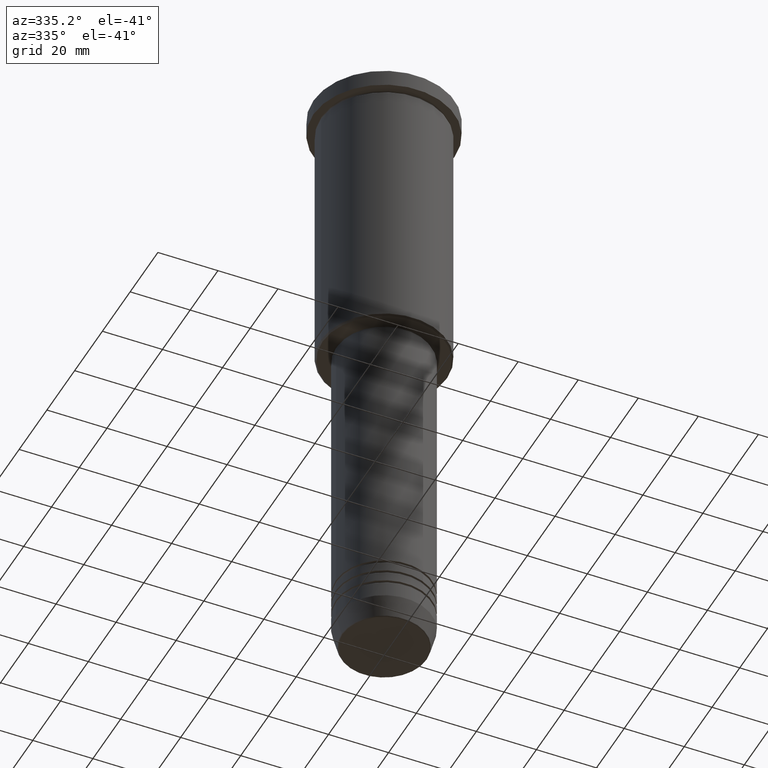
[diagram: clean part render]
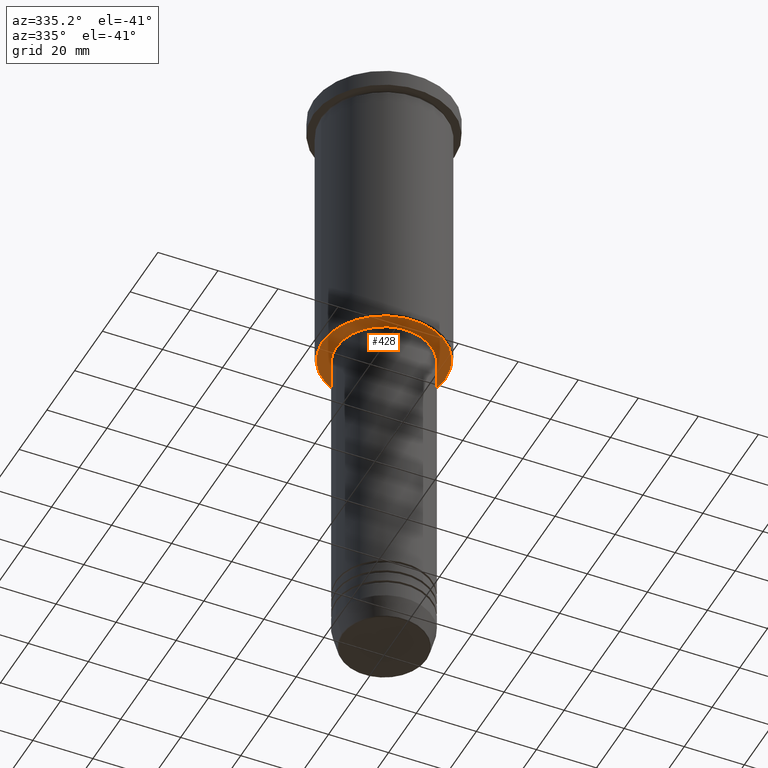
[diagram: same view with one face highlighted and labeled with its STEP entity id]
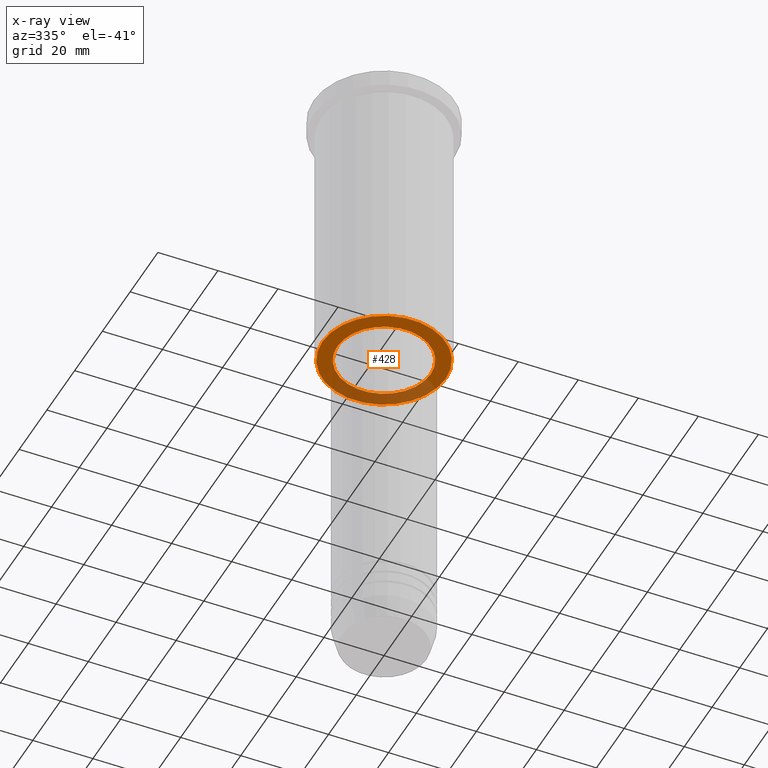
[diagram: x-ray of the same camera — body ghosted, the highlighted face saturated]
A machine part, auxiliary view. The second image highlights one B-rep face of the part: STEP entity #428.
The next image is the same camera in x-ray: the body ghosted, the highlighted face saturated — about 30% of this face is hidden behind the body in this view.
In plain terms, the highlighted planar face has unit normal (0, 0, -1).
Its self-contained STEP definition (entity closure, byte-faithful):
#9 = CIRCLE ( 'NONE', #195, 20.49999999999996447 ) ;
#20 = CARTESIAN_POINT ( 'NONE',  ( 20.49999999999996447, 0.000000000000000000, -96.00000000000002842 ) ) ;
#25 = EDGE_LOOP ( 'NONE', ( #701, #381 ) ) ;
#100 = ORIENTED_EDGE ( 'NONE', *, *, #421, .T. ) ;
#137 = DIRECTION ( 'NONE',  ( 1.000000000000000000, 0.000000000000000000, 0.000000000000000000 ) ) ;
#195 = AXIS2_PLACEMENT_3D ( 'NONE', #1072, #688, #967 ) ;
#245 = CARTESIAN_POINT ( 'NONE',  ( 0.000000000000000000, 21.00000000000000000, -96.00000000000002842 ) ) ;
#254 = CARTESIAN_POINT ( 'NONE',  ( 0.000000000000000000, 0.000000000000000000, -96.00000000000002842 ) ) ;
#259 = CIRCLE ( 'NONE', #921, 20.49999999999996447 ) ;
#329 = DIRECTION ( 'NONE',  ( -0.000000000000000000, -0.000000000000000000, 1.000000000000000000 ) ) ;
#337 = CARTESIAN_POINT ( 'NONE',  ( 0.000000000000000000, 0.000000000000000000, -96.00000000000002842 ) ) ;
#363 = DIRECTION ( 'NONE',  ( -1.000000000000000000, 0.000000000000000000, 0.000000000000000000 ) ) ;
#381 = ORIENTED_EDGE ( 'NONE', *, *, #888, .T. ) ;
#395 = VERTEX_POINT ( 'NONE', #427 ) ;
#410 = CIRCLE ( 'NONE', #1018, 15.50000000000000000 ) ;
#414 = AXIS2_PLACEMENT_3D ( 'NONE', #337, #329, #137 ) ;
#421 = EDGE_CURVE ( 'NONE', #455, #395, #900, .T. ) ;
#422 = FACE_BOUND ( 'NONE', #896, .T. ) ;
#427 = CARTESIAN_POINT ( 'NONE',  ( -15.50000000000000000, 1.898202538678397557E-15, -96.00000000000002842 ) ) ;
#428 = ADVANCED_FACE ( 'NONE', ( #783, #422 ), #1152, .T. ) ;
#436 = EDGE_CURVE ( 'NONE', #549, #951, #9, .T. ) ;
#446 = EDGE_CURVE ( 'NONE', #395, #455, #410, .T. ) ;
#455 = VERTEX_POINT ( 'NONE', #527 ) ;
#525 = ORIENTED_EDGE ( 'NONE', *, *, #446, .T. ) ;
#527 = CARTESIAN_POINT ( 'NONE',  ( 15.50000000000000000, 0.000000000000000000, -96.00000000000002842 ) ) ;
#549 = VERTEX_POINT ( 'NONE', #20 ) ;
#603 = DIRECTION ( 'NONE',  ( 0.000000000000000000, 0.000000000000000000, -1.000000000000000000 ) ) ;
#688 = DIRECTION ( 'NONE',  ( 0.000000000000000000, 0.000000000000000000, -1.000000000000000000 ) ) ;
#697 = DIRECTION ( 'NONE',  ( -1.000000000000000000, 0.000000000000000000, -0.000000000000000000 ) ) ;
#701 = ORIENTED_EDGE ( 'NONE', *, *, #436, .T. ) ;
#783 = FACE_OUTER_BOUND ( 'NONE', #25, .T. ) ;
#810 = CARTESIAN_POINT ( 'NONE',  ( 0.000000000000000000, 0.000000000000000000, -96.00000000000002842 ) ) ;
#822 = AXIS2_PLACEMENT_3D ( 'NONE', #245, #603, #697 ) ;
#888 = EDGE_CURVE ( 'NONE', #951, #549, #259, .T. ) ;
#896 = EDGE_LOOP ( 'NONE', ( #100, #525 ) ) ;
#900 = CIRCLE ( 'NONE', #414, 15.50000000000000000 ) ;
#921 = AXIS2_PLACEMENT_3D ( 'NONE', #810, #1180, #363 ) ;
#951 = VERTEX_POINT ( 'NONE', #1031 ) ;
#967 = DIRECTION ( 'NONE',  ( -1.000000000000000000, 0.000000000000000000, 0.000000000000000000 ) ) ;
#984 = DIRECTION ( 'NONE',  ( -0.000000000000000000, -0.000000000000000000, 1.000000000000000000 ) ) ;
#1018 = AXIS2_PLACEMENT_3D ( 'NONE', #254, #984, #1068 ) ;
#1031 = CARTESIAN_POINT ( 'NONE',  ( -20.49999999999996447, 2.541142108230755902E-15, -96.00000000000002842 ) ) ;
#1068 = DIRECTION ( 'NONE',  ( 1.000000000000000000, 0.000000000000000000, 0.000000000000000000 ) ) ;
#1072 = CARTESIAN_POINT ( 'NONE',  ( 0.000000000000000000, 0.000000000000000000, -96.00000000000002842 ) ) ;
#1152 = PLANE ( 'NONE',  #822 ) ;
#1180 = DIRECTION ( 'NONE',  ( 0.000000000000000000, 0.000000000000000000, -1.000000000000000000 ) ) ;